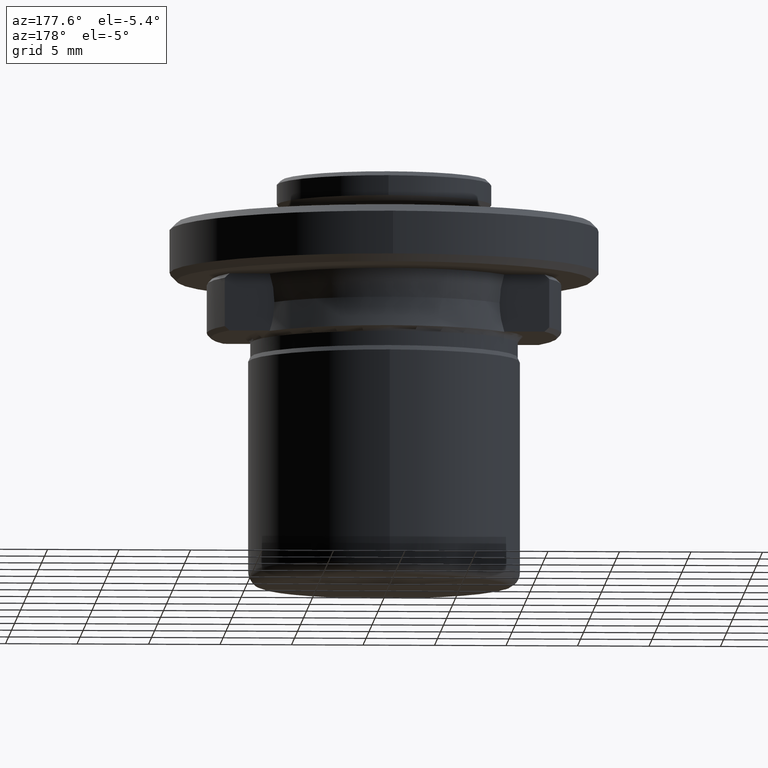
[diagram: clean part render]
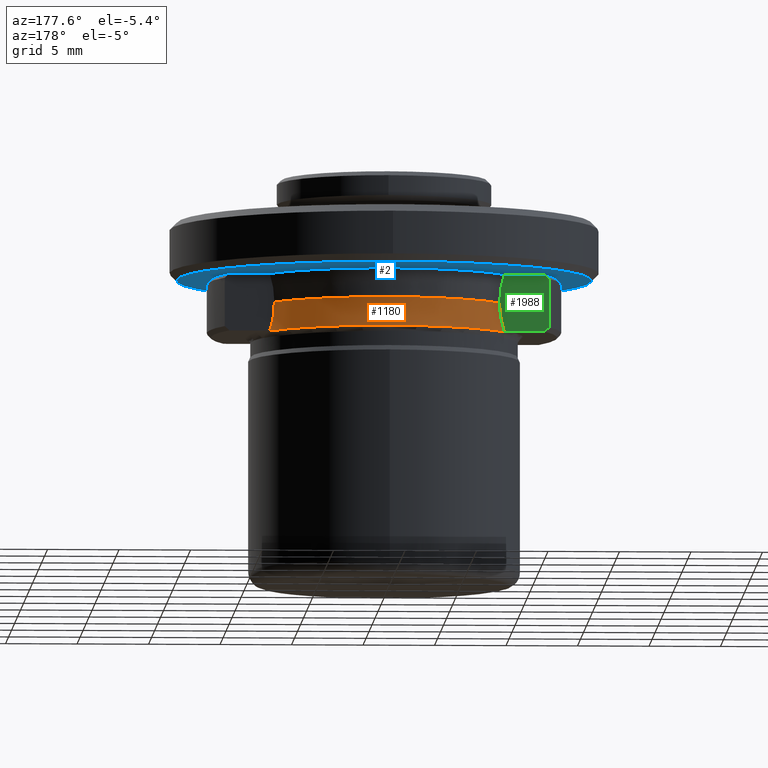
[diagram: same view with three faces highlighted in distinct colors, each labeled with its STEP entity id]
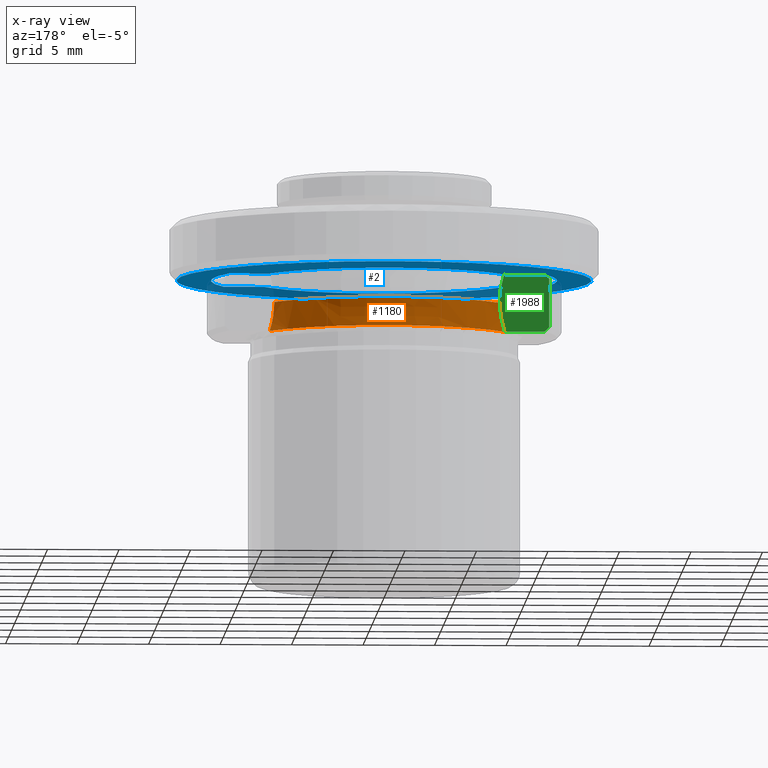
[diagram: x-ray of the same camera — body ghosted, the three highlighted faces saturated]
A machine part, auxiliary view with three faces highlighted in distinct colors.
The next image is the same camera in x-ray (body ghosted, the three faces saturated) — at least one of them is partly hidden behind the body in this view.
Their STEP definitions:

[orange] entity #1180 — the highlighted face is a freeform B-spline surface patch.
#36 = CARTESIAN_POINT ( 'NONE',  ( 3.939257820999999500, 11.49269213200000200, 6.309778704000000200 ) ) ;
#38 = CARTESIAN_POINT ( 'NONE',  ( -8.471190540000002000, 5.020344791000000300, 4.013434577999998300 ) ) ;
#47 = CARTESIAN_POINT ( 'NONE',  ( 8.096106681000000200, 4.798056047999999400, 5.125992605999997000 ) ) ;
#75 = ORIENTED_EDGE ( 'NONE', *, *, #1203, .T. ) ;
#88 = EDGE_LOOP ( 'NONE', ( #623, #75, #639, #496 ) ) ;
#153 = VERTEX_POINT ( 'NONE', #715 ) ;
#177 = CARTESIAN_POINT ( 'NONE',  ( 7.877112416672512800, 4.999999997048595500, 6.749999999319589600 ) ) ;
#191 = AXIS2_PLACEMENT_3D ( 'NONE', #1262, #1484, #1658 ) ;
#249 = EDGE_CURVE ( 'NONE', #153, #1834, #1829, .T. ) ;
#270 = CARTESIAN_POINT ( 'NONE',  ( 7.877112416672512800, 4.999999997048595500, 6.749999999319589600 ) ) ;
#277 = B_SPLINE_CURVE_WITH_KNOTS ( 'NONE', 3,
 ( #270, #1326, #1443, #760 ),
 .UNSPECIFIED., .F., .F.,
 ( 4, 4 ),
 ( 8.673617379884035500E-019, 0.002058707678565891700 ),
 .UNSPECIFIED. ) ;
#328 = VERTEX_POINT ( 'NONE', #819 ) ;
#389 = EDGE_CURVE ( 'NONE', #1834, #736, #277, .T. ) ;
#482 = CARTESIAN_POINT ( 'NONE',  ( 7.877112416672512800, 4.999999997048595500, 6.749999999319589600 ) ) ;
#496 = ORIENTED_EDGE ( 'NONE', *, *, #249, .T. ) ;
#535 = CARTESIAN_POINT ( 'NONE',  ( -8.058595508000001600, 4.775825521999999900, 7.498750625000000400 ) ) ;
#623 = ORIENTED_EDGE ( 'NONE', *, *, #389, .T. ) ;
#639 = ORIENTED_EDGE ( 'NONE', *, *, #2013, .T. ) ;
#677 = B_SPLINE_CURVE_WITH_KNOTS ( 'NONE', 3,
 ( #912, #1116, #1075, #1247 ),
 .UNSPECIFIED., .F., .F.,
 ( 4, 4 ),
 ( 1.213076539937994500E-013, 0.002059031618340729500 ),
 .UNSPECIFIED. ) ;
#704 = CARTESIAN_POINT ( 'NONE',  ( -3.939257820999999500, 11.49269213200000200, 6.309778704000000200 ) ) ;
#714 = CARTESIAN_POINT ( 'NONE',  ( 8.471190540000002000, 5.020344791000000300, 4.013434577999998300 ) ) ;
#715 = CARTESIAN_POINT ( 'NONE',  ( -7.877112416672511100, 4.999999997048597300, 6.749999999319589600 ) ) ;
#736 = VERTEX_POINT ( 'NONE', #1973 ) ;
#760 = CARTESIAN_POINT ( 'NONE',  ( 8.205382974800770100, 5.000000000000000900, 4.724235040159770800 ) ) ;
#819 = CARTESIAN_POINT ( 'NONE',  ( -8.205382973227298000, 5.000000000000000900, 4.724235039559845400 ) ) ;
#850 = CARTESIAN_POINT ( 'NONE',  ( -7.877112416672511100, 4.999999997048597300, 6.749999999319589600 ) ) ;
#878 = CARTESIAN_POINT ( 'NONE',  ( -7.955968956000000400, 4.715005183999999800, 6.309778704000000200 ) ) ;
#912 = CARTESIAN_POINT ( 'NONE',  ( -8.205382973227298000, 5.000000000000000900, 4.724235039559845400 ) ) ;
#965 = CARTESIAN_POINT ( 'NONE',  ( -4.008644545999999300, 11.69512627200000000, 5.125992605999998700 ) ) ;
#1056 = CARTESIAN_POINT ( 'NONE',  ( -8.096106681000000200, 4.798056047999999400, 5.125992605999997000 ) ) ;
#1075 = CARTESIAN_POINT ( 'NONE',  ( -7.877112415290540100, 5.000000000000000000, 6.061556053650237500 ) ) ;
#1116 = CARTESIAN_POINT ( 'NONE',  ( -7.990552239294795600, 4.999999999999997300, 5.378193889154550400 ) ) ;
#1167 = CIRCLE ( 'NONE', #191, 9.608762133607653400 ) ;
#1180 = ADVANCED_FACE ( 'NONE', ( #2143 ), #1809, .F. ) ;
#1203 = EDGE_CURVE ( 'NONE', #736, #328, #1167, .T. ) ;
#1223 = CARTESIAN_POINT ( 'NONE',  ( 4.194360708000000500, 12.23694881300000100, 4.013434577999999100 ) ) ;
#1247 = CARTESIAN_POINT ( 'NONE',  ( -7.877112416672511100, 4.999999997048597300, 6.749999999319589600 ) ) ;
#1262 = CARTESIAN_POINT ( 'NONE',  ( 0.0000000000000000000, 0.0000000000000000000, 4.724235039728594800 ) ) ;
#1326 = CARTESIAN_POINT ( 'NONE',  ( 7.877112415290536500, 5.000000000000000000, 6.061559035861058900 ) ) ;
#1364 = CARTESIAN_POINT ( 'NONE',  ( 3.802041327538610900, 11.41995861482380400, 6.749999999011321500 ) ) ;
#1443 = CARTESIAN_POINT ( 'NONE',  ( 7.990553860150956900, 5.000000000000000000, 5.378188955162049600 ) ) ;
#1484 = DIRECTION ( 'NONE',  ( 0.0000000000000000000, 9.026779162063304700E-017, 1.000000000000000000 ) ) ;
#1558 = CARTESIAN_POINT ( 'NONE',  ( 3.990071549000000100, 11.64093999100000000, 7.498750625000000400 ) ) ;
#1658 = DIRECTION ( 'NONE',  ( 0.0000000000000000000, -1.000000000000000000, 9.026779161851814800E-017 ) ) ;
#1734 = CARTESIAN_POINT ( 'NONE',  ( -3.990071549000000100, 11.64093999100000000, 7.498750625000000400 ) ) ;
#1741 = CARTESIAN_POINT ( 'NONE',  ( 4.008644545999999300, 11.69512627200000000, 5.125992605999998700 ) ) ;
#1809 =( BOUNDED_SURFACE ( )  B_SPLINE_SURFACE ( 3, 3, ( 
 ( #714, #1223, #2091, #38 ),
 ( #47, #1741, #965, #1056 ),
 ( #2090, #36, #704, #878 ),
 ( #1911, #1558, #1734, #535 ) ),
 .UNSPECIFIED., .F., .F., .T. ) 
 B_SPLINE_SURFACE_WITH_KNOTS ( ( 4, 4 ),
 ( 4, 4 ),
 ( 0.0000000000000000000, 1.000000000000000000 ),
 ( 0.0000000000000000000, 1.000000000000000000 ),
 .UNSPECIFIED. ) 
 GEOMETRIC_REPRESENTATION_ITEM ( )  RATIONAL_B_SPLINE_SURFACE ( (
 ( 1.000000000000000000, 0.6732206351089341500, 0.6732206351089341500, 1.000000000000000000),
 ( 0.9814036659297938900, 0.6607011992754922000, 0.6607011992754922000, 0.9814036659297938900),
 ( 0.9814036659297938900, 0.6607011992754922000, 0.6607011992754922000, 0.9814036659297938900),
 ( 1.000000000000000000, 0.6732206351089341500, 0.6732206351089341500, 1.000000000000000000) ) ) 
 REPRESENTATION_ITEM ( '' )  SURFACE ( )  );
#1829 =( BOUNDED_CURVE ( )  B_SPLINE_CURVE ( 3, ( #850, #2014, #1364, #177 ),
 .UNSPECIFIED., .F., .F. ) 
 B_SPLINE_CURVE_WITH_KNOTS ( ( 4, 4 ),
 ( 0.0000000000000000000, 1.000000000000000000 ),
 .UNSPECIFIED. ) 
 CURVE ( )  GEOMETRIC_REPRESENTATION_ITEM ( )  RATIONAL_B_SPLINE_CURVE ( ( 0.9738585525977352400, 0.6725504043378097700, 0.6725504043378099900, 0.9738585525977354600 ) ) 
 REPRESENTATION_ITEM ( '' )  );
#1834 = VERTEX_POINT ( 'NONE', #482 ) ;
#1911 = CARTESIAN_POINT ( 'NONE',  ( 8.058595508000001600, 4.775825521999999900, 7.498750625000000400 ) ) ;
#1973 = CARTESIAN_POINT ( 'NONE',  ( 8.205382974800770100, 5.000000000000000900, 4.724235040159770800 ) ) ;
#2013 = EDGE_CURVE ( 'NONE', #328, #153, #677, .T. ) ;
#2014 = CARTESIAN_POINT ( 'NONE',  ( -3.802041327538604200, 11.41995861482380700, 6.749999999011319800 ) ) ;
#2090 = CARTESIAN_POINT ( 'NONE',  ( 7.955968956000000400, 4.715005183999999800, 6.309778704000000200 ) ) ;
#2091 = CARTESIAN_POINT ( 'NONE',  ( -4.194360708000000500, 12.23694881300000100, 4.013434577999999100 ) ) ;
#2143 = FACE_OUTER_BOUND ( 'NONE', #88, .T. ) ;

[blue] entity #2 — the highlighted planar face has unit normal (0, 0, 1).
#2 = ADVANCED_FACE ( 'NONE', ( #1261, #1367 ), #763, .F. ) ;
#3 = CARTESIAN_POINT ( 'NONE',  ( -12.09999999999999800, 0.0000000000000000000, 8.750000000000000000 ) ) ;
#20 = CIRCLE ( 'NONE', #1454, 12.10000000000000000 ) ;
#71 = EDGE_CURVE ( 'NONE', #311, #618, #2184, .T. ) ;
#72 = ORIENTED_EDGE ( 'NONE', *, *, #1362, .T. ) ;
#89 = CARTESIAN_POINT ( 'NONE',  ( -8.196975813224247200, -5.000000000059219300, 8.750000000000000000 ) ) ;
#145 = LINE ( 'NONE', #2054, #581 ) ;
#162 = CARTESIAN_POINT ( 'NONE',  ( 11.01862060369155700, -4.999999999999999100, 8.749999999665449800 ) ) ;
#182 = CARTESIAN_POINT ( 'NONE',  ( 14.50000000000003600, 0.0000000000000000000, 8.750000000000035500 ) ) ;
#184 = DIRECTION ( 'NONE',  ( 1.000000000000000000, 0.0000000000000000000, 0.0000000000000000000 ) ) ;
#198 = LINE ( 'NONE', #519, #1049 ) ;
#215 = EDGE_CURVE ( 'NONE', #2132, #643, #198, .T. ) ;
#255 = ORIENTED_EDGE ( 'NONE', *, *, #265, .F. ) ;
#261 = CIRCLE ( 'NONE', #398, 12.10000000000000100 ) ;
#264 = DIRECTION ( 'NONE',  ( -1.000000000000000000, 0.0000000000000000000, 0.0000000000000000000 ) ) ;
#265 = EDGE_CURVE ( 'NONE', #1005, #1373, #145, .T. ) ;
#266 = CARTESIAN_POINT ( 'NONE',  ( -11.01862060327093200, -4.999999999999999100, 8.750000000048482100 ) ) ;
#297 = CARTESIAN_POINT ( 'NONE',  ( 0.0000000000000000000, 0.0000000000000000000, 8.750000000000000000 ) ) ;
#311 = VERTEX_POINT ( 'NONE', #1695 ) ;
#327 = EDGE_CURVE ( 'NONE', #699, #1520, #1390, .T. ) ;
#398 = AXIS2_PLACEMENT_3D ( 'NONE', #2182, #982, #796 ) ;
#401 = EDGE_CURVE ( 'NONE', #699, #1064, #20, .T. ) ;
#404 = EDGE_LOOP ( 'NONE', ( #546, #2197, #255, #919, #1598, #1536, #72, #1866, #576 ) ) ;
#411 = CARTESIAN_POINT ( 'NONE',  ( -4.015183221453917800, 11.85561054469040200, 8.750000000000001800 ) ) ;
#415 = DIRECTION ( 'NONE',  ( 0.0000000000000000000, 0.0000000000000000000, -1.000000000000000000 ) ) ;
#484 = VERTEX_POINT ( 'NONE', #2068 ) ;
#519 = CARTESIAN_POINT ( 'NONE',  ( 0.0000000000000000000, 5.000000006628000400, 8.750000000000000000 ) ) ;
#546 = ORIENTED_EDGE ( 'NONE', *, *, #215, .F. ) ;
#576 = ORIENTED_EDGE ( 'NONE', *, *, #1191, .F. ) ;
#577 = CARTESIAN_POINT ( 'NONE',  ( 8.196975813404298700, -5.000000000000000000, 8.750000000444099900 ) ) ;
#581 = VECTOR ( 'NONE', #1883, 1000.000000000000000 ) ;
#592 = EDGE_CURVE ( 'NONE', #1692, #484, #1058, .T. ) ;
#603 =( BOUNDED_CURVE ( )  B_SPLINE_CURVE ( 3, ( #89, #1956, #748, #577 ),
 .UNSPECIFIED., .F., .F. ) 
 B_SPLINE_CURVE_WITH_KNOTS ( ( 4, 4 ),
 ( 0.0000000000000000000, 0.01955758531398497200 ),
 .UNSPECIFIED. ) 
 CURVE ( )  GEOMETRIC_REPRESENTATION_ITEM ( )  RATIONAL_B_SPLINE_CURVE ( ( 0.9839124906715949200, 0.6695507562529831000, 0.6695507562529824400, 0.9839124906715930300 ) ) 
 REPRESENTATION_ITEM ( '' )  );
#618 = VERTEX_POINT ( 'NONE', #162 ) ;
#643 = VERTEX_POINT ( 'NONE', #2032 ) ;
#648 = DIRECTION ( 'NONE',  ( 1.000000000000000000, -0.0000000000000000000, -0.0000000000000000000 ) ) ;
#693 = EDGE_LOOP ( 'NONE', ( #1077, #1645 ) ) ;
#699 = VERTEX_POINT ( 'NONE', #266 ) ;
#716 = DIRECTION ( 'NONE',  ( 0.0000000000000000000, 0.0000000000000000000, 1.000000000000000000 ) ) ;
#737 = EDGE_CURVE ( 'NONE', #1373, #2132, #1980, .T. ) ;
#748 = CARTESIAN_POINT ( 'NONE',  ( 4.015183221997171300, -11.85561054524241900, 8.750000000000001800 ) ) ;
#763 = PLANE ( 'NONE',  #1892 ) ;
#789 = CARTESIAN_POINT ( 'NONE',  ( -8.196975813224247200, -5.000000000059219300, 8.750000000000000000 ) ) ;
#796 = DIRECTION ( 'NONE',  ( -1.000000000000000000, 0.0000000000000000000, 0.0000000000000000000 ) ) ;
#798 = EDGE_CURVE ( 'NONE', #484, #1692, #1643, .T. ) ;
#882 = VECTOR ( 'NONE', #648, 1000.000000000000000 ) ;
#918 = CARTESIAN_POINT ( 'NONE',  ( -8.196975812969103700, 5.000000000442648600, 8.750000000509832200 ) ) ;
#919 = ORIENTED_EDGE ( 'NONE', *, *, #1839, .F. ) ;
#959 = DIRECTION ( 'NONE',  ( 1.000000000000000000, 0.0000000000000000000, 0.0000000000000000000 ) ) ;
#982 = DIRECTION ( 'NONE',  ( 0.0000000000000000000, 0.0000000000000000000, -1.000000000000000000 ) ) ;
#1005 = VERTEX_POINT ( 'NONE', #1128 ) ;
#1046 = CARTESIAN_POINT ( 'NONE',  ( 8.196975814546172900, 5.000000003314001500, 8.750000000509832200 ) ) ;
#1049 = VECTOR ( 'NONE', #184, 1000.000000000000000 ) ;
#1058 = CIRCLE ( 'NONE', #1572, 14.50000000000003600 ) ;
#1064 = VERTEX_POINT ( 'NONE', #3 ) ;
#1077 = ORIENTED_EDGE ( 'NONE', *, *, #592, .F. ) ;
#1087 = CARTESIAN_POINT ( 'NONE',  ( 0.0000000000000000000, 0.0000000000000000000, 8.750000000000035500 ) ) ;
#1128 = CARTESIAN_POINT ( 'NONE',  ( -11.01862060233275300, 5.000000003314000600, 8.749999999533397200 ) ) ;
#1185 = AXIS2_PLACEMENT_3D ( 'NONE', #1087, #1249, #1403 ) ;
#1191 = EDGE_CURVE ( 'NONE', #643, #618, #261, .T. ) ;
#1239 = AXIS2_PLACEMENT_3D ( 'NONE', #297, #1506, #1329 ) ;
#1249 = DIRECTION ( 'NONE',  ( 0.0000000000000000000, -0.0000000000000000000, 1.000000000000000000 ) ) ;
#1261 = FACE_BOUND ( 'NONE', #404, .T. ) ;
#1274 = CARTESIAN_POINT ( 'NONE',  ( -8.196975812969103700, 5.000000000442648600, 8.750000000509832200 ) ) ;
#1329 = DIRECTION ( 'NONE',  ( -1.000000000000000000, 0.0000000000000000000, 0.0000000000000000000 ) ) ;
#1362 = EDGE_CURVE ( 'NONE', #1520, #311, #603, .T. ) ;
#1367 = FACE_OUTER_BOUND ( 'NONE', #693, .T. ) ;
#1373 = VERTEX_POINT ( 'NONE', #918 ) ;
#1390 = LINE ( 'NONE', #1856, #882 ) ;
#1403 = DIRECTION ( 'NONE',  ( 1.000000000000000000, 0.0000000000000000000, 0.0000000000000000000 ) ) ;
#1449 = CARTESIAN_POINT ( 'NONE',  ( 8.196975814546172900, 5.000000003314001500, 8.750000000509832200 ) ) ;
#1454 = AXIS2_PLACEMENT_3D ( 'NONE', #1458, #415, #264 ) ;
#1458 = CARTESIAN_POINT ( 'NONE',  ( 0.0000000000000000000, 0.0000000000000000000, 8.750000000000000000 ) ) ;
#1506 = DIRECTION ( 'NONE',  ( 0.0000000000000000000, 0.0000000000000000000, -1.000000000000000000 ) ) ;
#1520 = VERTEX_POINT ( 'NONE', #789 ) ;
#1536 = ORIENTED_EDGE ( 'NONE', *, *, #327, .T. ) ;
#1571 = CARTESIAN_POINT ( 'NONE',  ( 9.597103929000001100, -5.000000000000000000, 8.750000000000000000 ) ) ;
#1572 = AXIS2_PLACEMENT_3D ( 'NONE', #2039, #1690, #1871 ) ;
#1598 = ORIENTED_EDGE ( 'NONE', *, *, #401, .F. ) ;
#1641 = CIRCLE ( 'NONE', #1239, 12.10000000000000000 ) ;
#1643 = CIRCLE ( 'NONE', #1185, 14.50000000000003600 ) ;
#1645 = ORIENTED_EDGE ( 'NONE', *, *, #798, .F. ) ;
#1647 = CARTESIAN_POINT ( 'NONE',  ( 4.015183221453870700, 11.85561054469042100, 8.750000000000001800 ) ) ;
#1690 = DIRECTION ( 'NONE',  ( 0.0000000000000000000, -0.0000000000000000000, 1.000000000000000000 ) ) ;
#1692 = VERTEX_POINT ( 'NONE', #182 ) ;
#1695 = CARTESIAN_POINT ( 'NONE',  ( 8.196975813404300500, -5.000000000000000000, 8.750000000444099900 ) ) ;
#1716 = VECTOR ( 'NONE', #1832, 1000.000000000000000 ) ;
#1832 = DIRECTION ( 'NONE',  ( 1.000000000000000000, -0.0000000000000000000, -0.0000000000000000000 ) ) ;
#1839 = EDGE_CURVE ( 'NONE', #1064, #1005, #1641, .T. ) ;
#1850 = CARTESIAN_POINT ( 'NONE',  ( -14.67399999999999900, -14.67399999999999900, 8.750000000000000000 ) ) ;
#1856 = CARTESIAN_POINT ( 'NONE',  ( -9.597103929000001100, -5.000000000000000000, 8.750000000000000000 ) ) ;
#1866 = ORIENTED_EDGE ( 'NONE', *, *, #71, .T. ) ;
#1871 = DIRECTION ( 'NONE',  ( 1.000000000000000000, 0.0000000000000000000, 0.0000000000000000000 ) ) ;
#1883 = DIRECTION ( 'NONE',  ( 1.000000000000000000, 0.0000000000000000000, 0.0000000000000000000 ) ) ;
#1892 = AXIS2_PLACEMENT_3D ( 'NONE', #1850, #716, #959 ) ;
#1956 = CARTESIAN_POINT ( 'NONE',  ( -4.015183221997213000, -11.85561054524239600, 8.750000000000000000 ) ) ;
#1980 =( BOUNDED_CURVE ( )  B_SPLINE_CURVE ( 3, ( #1274, #411, #1647, #1449 ),
 .UNSPECIFIED., .F., .F. ) 
 B_SPLINE_CURVE_WITH_KNOTS ( ( 4, 4 ),
 ( 0.0000000000000000000, 0.01955758531167859200 ),
 .UNSPECIFIED. ) 
 CURVE ( )  GEOMETRIC_REPRESENTATION_ITEM ( )  RATIONAL_B_SPLINE_CURVE ( ( 0.9839124906199209200, 0.6695507562702077700, 0.6695507562702069900, 0.9839124906199190300 ) ) 
 REPRESENTATION_ITEM ( '' )  );
#2032 = CARTESIAN_POINT ( 'NONE',  ( 11.01862060256122100, 5.000000003314000600, 8.749999999325346800 ) ) ;
#2039 = CARTESIAN_POINT ( 'NONE',  ( 0.0000000000000000000, 0.0000000000000000000, 8.750000000000035500 ) ) ;
#2054 = CARTESIAN_POINT ( 'NONE',  ( 0.0000000000000000000, 5.000000006628000400, 8.750000000000000000 ) ) ;
#2068 = CARTESIAN_POINT ( 'NONE',  ( -14.50000000000003600, 1.806354028742348200E-015, 8.750000000000035500 ) ) ;
#2132 = VERTEX_POINT ( 'NONE', #1046 ) ;
#2182 = CARTESIAN_POINT ( 'NONE',  ( 0.0000000000000000000, 0.0000000000000000000, 8.749999999999998200 ) ) ;
#2184 = LINE ( 'NONE', #1571, #1716 ) ;
#2197 = ORIENTED_EDGE ( 'NONE', *, *, #737, .F. ) ;

[green] entity #1988 — the highlighted planar face has unit normal (0, -1, 0).
#18 = ORIENTED_EDGE ( 'NONE', *, *, #2013, .F. ) ;
#62 = B_SPLINE_CURVE_WITH_KNOTS ( 'NONE', 3,
 ( #1701, #676, #2220, #168 ),
 .UNSPECIFIED., .F., .F.,
 ( 4, 4 ),
 ( 5.980985295301940700E-013, 0.002031991267083052600 ),
 .UNSPECIFIED. ) ;
#69 = ORIENTED_EDGE ( 'NONE', *, *, #291, .T. ) ;
#91 = CARTESIAN_POINT ( 'NONE',  ( -11.23782482277525400, 5.000000000000000000, 8.550131706688427300 ) ) ;
#95 = LINE ( 'NONE', #495, #1000 ) ;
#145 = LINE ( 'NONE', #2054, #581 ) ;
#153 = VERTEX_POINT ( 'NONE', #715 ) ;
#168 = CARTESIAN_POINT ( 'NONE',  ( -7.877112416672511100, 4.999999997048597300, 6.749999999319589600 ) ) ;
#265 = EDGE_CURVE ( 'NONE', #1005, #1373, #145, .T. ) ;
#291 = EDGE_CURVE ( 'NONE', #2046, #858, #95, .T. ) ;
#328 = VERTEX_POINT ( 'NONE', #819 ) ;
#495 = CARTESIAN_POINT ( 'NONE',  ( -11.34724635990468900, 5.000000004762981100, 6.750000000000000900 ) ) ;
#557 = EDGE_CURVE ( 'NONE', #807, #328, #1876, .T. ) ;
#581 = VECTOR ( 'NONE', #1883, 1000.000000000000000 ) ;
#600 = CARTESIAN_POINT ( 'NONE',  ( -11.01862060325745700, 4.999999999999999100, 4.749999999939245900 ) ) ;
#619 = AXIS2_PLACEMENT_3D ( 'NONE', #1613, #1226, #1402 ) ;
#651 = ORIENTED_EDGE ( 'NONE', *, *, #753, .F. ) ;
#662 = DIRECTION ( 'NONE',  ( 0.0000000000000000000, 0.0000000000000000000, 1.000000000000000000 ) ) ;
#676 = CARTESIAN_POINT ( 'NONE',  ( -7.987554438100409500, 5.000000000000000000, 8.103832765032985100 ) ) ;
#677 = B_SPLINE_CURVE_WITH_KNOTS ( 'NONE', 3,
 ( #912, #1116, #1075, #1247 ),
 .UNSPECIFIED., .F., .F.,
 ( 4, 4 ),
 ( 1.213076539937994500E-013, 0.002059031618340729500 ),
 .UNSPECIFIED. ) ;
#715 = CARTESIAN_POINT ( 'NONE',  ( -7.877112416672511100, 4.999999997048597300, 6.749999999319589600 ) ) ;
#724 = CARTESIAN_POINT ( 'NONE',  ( -11.01862060325745700, 4.999999999999999100, 4.749999999939245900 ) ) ;
#753 = EDGE_CURVE ( 'NONE', #1005, #858, #1575, .T. ) ;
#770 = B_SPLINE_CURVE_WITH_KNOTS ( 'NONE', 3,
 ( #1097, #2109, #1936, #724 ),
 .UNSPECIFIED., .F., .F.,
 ( 4, 4 ),
 ( 3.238883885890238900E-013, 0.0004449661656181250400 ),
 .UNSPECIFIED. ) ;
#807 = VERTEX_POINT ( 'NONE', #1095 ) ;
#818 = ORIENTED_EDGE ( 'NONE', *, *, #842, .F. ) ;
#819 = CARTESIAN_POINT ( 'NONE',  ( -8.205382973227298000, 5.000000000000000900, 4.724235039559845400 ) ) ;
#842 = EDGE_CURVE ( 'NONE', #2046, #1099, #770, .T. ) ;
#858 = VERTEX_POINT ( 'NONE', #1929 ) ;
#912 = CARTESIAN_POINT ( 'NONE',  ( -8.205382973227298000, 5.000000000000000900, 4.724235039559845400 ) ) ;
#918 = CARTESIAN_POINT ( 'NONE',  ( -8.196975812969103700, 5.000000000442648600, 8.750000000509832200 ) ) ;
#1000 = VECTOR ( 'NONE', #662, 1000.000000000000000 ) ;
#1005 = VERTEX_POINT ( 'NONE', #1128 ) ;
#1026 = CARTESIAN_POINT ( 'NONE',  ( -8.370334521211765000, 4.999999999999999100, 4.749999999889213100 ) ) ;
#1075 = CARTESIAN_POINT ( 'NONE',  ( -7.877112415290540100, 5.000000000000000000, 6.061556053650237500 ) ) ;
#1086 = EDGE_LOOP ( 'NONE', ( #1212, #1492, #18, #1507, #1355, #818, #69, #651 ) ) ;
#1095 = CARTESIAN_POINT ( 'NONE',  ( -8.370334521211765000, 4.999999999999999100, 4.749999999889213100 ) ) ;
#1097 = CARTESIAN_POINT ( 'NONE',  ( -11.34724636062125900, 5.000000002381489700, 5.049999999695453200 ) ) ;
#1099 = VERTEX_POINT ( 'NONE', #600 ) ;
#1116 = CARTESIAN_POINT ( 'NONE',  ( -7.990552239294795600, 4.999999999999997300, 5.378193889154550400 ) ) ;
#1128 = CARTESIAN_POINT ( 'NONE',  ( -11.01862060233275300, 5.000000003314000600, 8.749999999533397200 ) ) ;
#1212 = ORIENTED_EDGE ( 'NONE', *, *, #265, .T. ) ;
#1226 = DIRECTION ( 'NONE',  ( 0.0000000000000000000, -1.000000000000000000, 0.0000000000000000000 ) ) ;
#1247 = CARTESIAN_POINT ( 'NONE',  ( -7.877112416672511100, 4.999999997048597300, 6.749999999319589600 ) ) ;
#1281 = CARTESIAN_POINT ( 'NONE',  ( -11.01862060233275300, 5.000000003314000600, 8.749999999533397200 ) ) ;
#1355 = ORIENTED_EDGE ( 'NONE', *, *, #1707, .T. ) ;
#1358 = CARTESIAN_POINT ( 'NONE',  ( -8.205382973227298000, 5.000000000000000900, 4.724235039559845400 ) ) ;
#1373 = VERTEX_POINT ( 'NONE', #918 ) ;
#1402 = DIRECTION ( 'NONE',  ( 0.0000000000000000000, 0.0000000000000000000, -1.000000000000000000 ) ) ;
#1492 = ORIENTED_EDGE ( 'NONE', *, *, #1751, .T. ) ;
#1507 = ORIENTED_EDGE ( 'NONE', *, *, #557, .F. ) ;
#1539 = CARTESIAN_POINT ( 'NONE',  ( -8.314009201291112200, 5.000000001154024400, 4.749999998633676900 ) ) ;
#1575 = B_SPLINE_CURVE_WITH_KNOTS ( 'NONE', 3,
 ( #1281, #1625, #91, #1787 ),
 .UNSPECIFIED., .F., .F.,
 ( 4, 4 ),
 ( 0.0000000000000000000, 0.0004449661644516557200 ),
 .UNSPECIFIED. ) ;
#1613 = CARTESIAN_POINT ( 'NONE',  ( -11.34724636200000000, 5.000000000000000000, 8.750000000000000000 ) ) ;
#1625 = CARTESIAN_POINT ( 'NONE',  ( -11.12828599798885600, 5.000000000000000000, 8.650135423376600100 ) ) ;
#1693 = LINE ( 'NONE', #1706, #1799 ) ;
#1701 = CARTESIAN_POINT ( 'NONE',  ( -8.196975812969103700, 5.000000000442648600, 8.750000000509832200 ) ) ;
#1706 = CARTESIAN_POINT ( 'NONE',  ( -10.23516726099999900, 5.000000000000000000, 4.750000000000000000 ) ) ;
#1707 = EDGE_CURVE ( 'NONE', #807, #1099, #1693, .T. ) ;
#1714 = DIRECTION ( 'NONE',  ( -1.000000000000000000, -0.0000000000000000000, -0.0000000000000000000 ) ) ;
#1751 = EDGE_CURVE ( 'NONE', #1373, #153, #62, .T. ) ;
#1787 = CARTESIAN_POINT ( 'NONE',  ( -11.34724636108874700, 5.000000002381489700, 8.449999999876746800 ) ) ;
#1799 = VECTOR ( 'NONE', #1714, 1000.000000000000000 ) ;
#1807 = CARTESIAN_POINT ( 'NONE',  ( -11.34724636062125900, 5.000000002381489700, 5.049999999695453200 ) ) ;
#1876 = B_SPLINE_CURVE_WITH_KNOTS ( 'NONE', 3,
 ( #1026, #1539, #1885, #1358 ),
 .UNSPECIFIED., .F., .F.,
 ( 4, 4 ),
 ( 0.0000000000000000000, 0.0001669516244480452800 ),
 .UNSPECIFIED. ) ;
#1883 = DIRECTION ( 'NONE',  ( 1.000000000000000000, 0.0000000000000000000, 0.0000000000000000000 ) ) ;
#1885 = CARTESIAN_POINT ( 'NONE',  ( -8.259008784567335200, 5.000000000000000000, 4.741517755171558200 ) ) ;
#1889 = FACE_OUTER_BOUND ( 'NONE', #1086, .T. ) ;
#1929 = CARTESIAN_POINT ( 'NONE',  ( -11.34724636108874700, 5.000000002381489700, 8.449999999876746800 ) ) ;
#1936 = CARTESIAN_POINT ( 'NONE',  ( -11.12828599690503000, 5.000000000000000000, 4.849864575634641500 ) ) ;
#1988 = ADVANCED_FACE ( 'NONE', ( #1889 ), #2142, .F. ) ;
#2013 = EDGE_CURVE ( 'NONE', #328, #153, #677, .T. ) ;
#2046 = VERTEX_POINT ( 'NONE', #1807 ) ;
#2054 = CARTESIAN_POINT ( 'NONE',  ( 0.0000000000000000000, 5.000000006628000400, 8.750000000000000000 ) ) ;
#2109 = CARTESIAN_POINT ( 'NONE',  ( -11.23782482176562400, 5.000000000000000000, 4.949868292389001400 ) ) ;
#2142 = PLANE ( 'NONE',  #619 ) ;
#2220 = CARTESIAN_POINT ( 'NONE',  ( -7.877112415001547200, 5.000000000000000000, 7.429352586293858500 ) ) ;